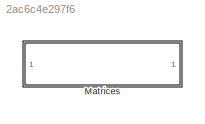
MODEL slx_2ac6c4e297f6
KIND model
CONFIG AbsTol = auto
CONFIG EnableMultiTasking = off
CONFIG FixedStep = auto
CONFIG MaxStep = auto
CONFIG MinStep = auto
CONFIG RelTol = 1e-3
CONFIG SampleTimeConstraint = Unconstrained
CONFIG SolverName = VariableStepAuto
CONFIG StartTime = 0.0
CONFIG StopTime = 10.0
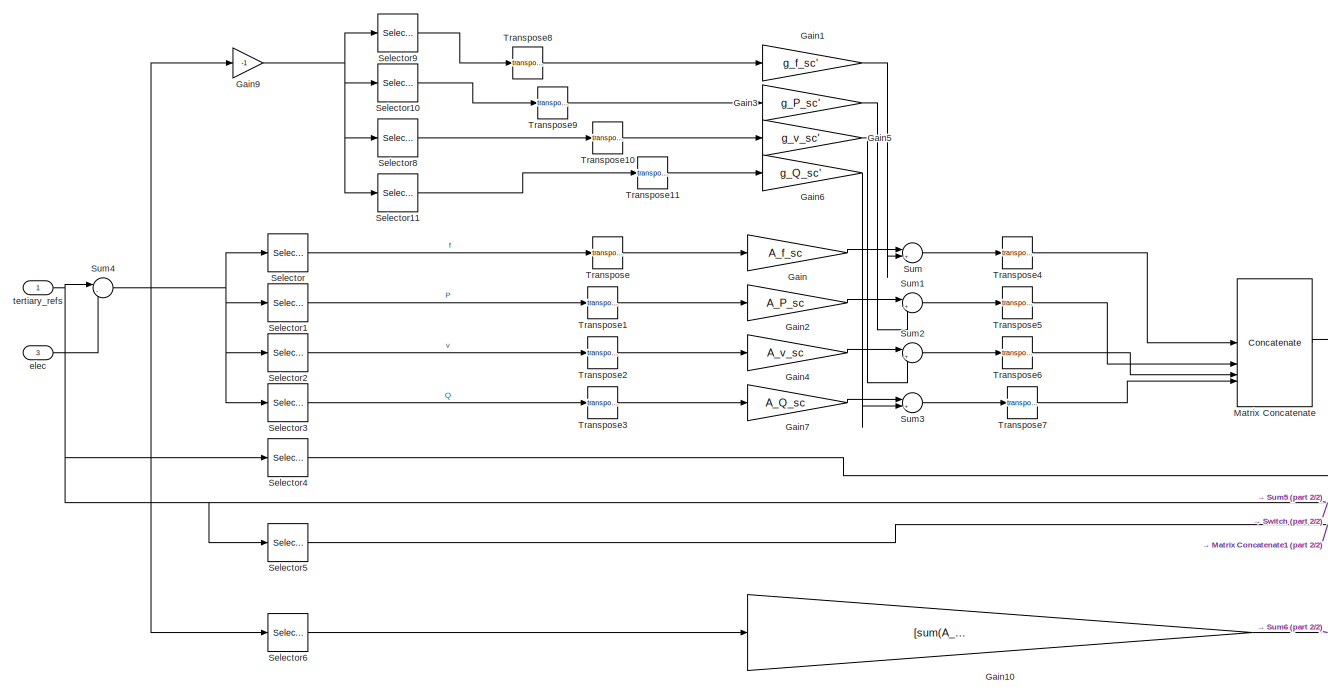
[diagram: Matrices - part 1/2, left side, full height]
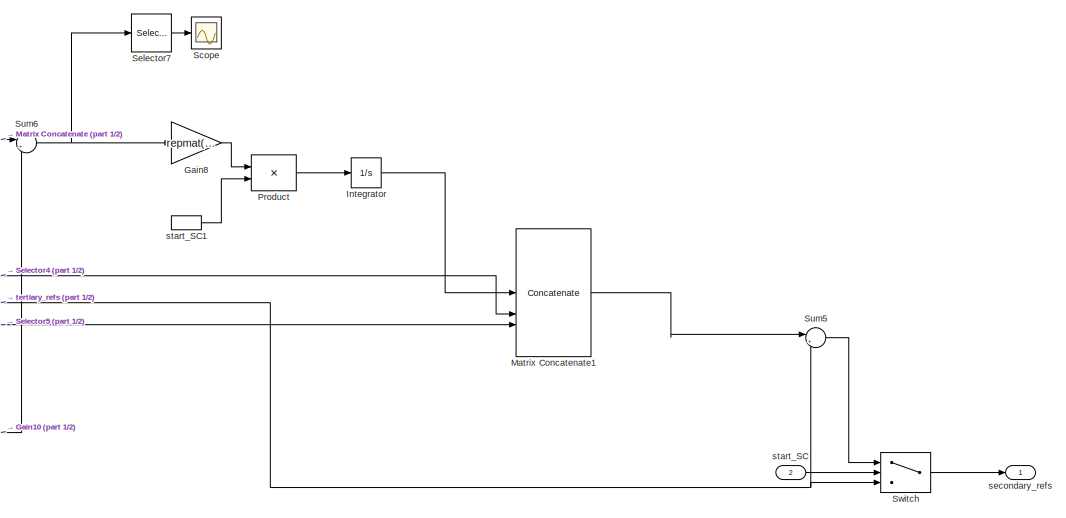
[diagram: Matrices - part 2/2, middle right region]
BLOCK [SubSystem] Matrices
  NameLocation = top
  VariantControl = Matrices
BLOCK [Gain] Matrices/Gain
  Gain = A_f_sc
  Multiplication = Matrix(K*u)
BLOCK [Gain] Matrices/Gain1
  Gain = g_f_sc'
BLOCK [Gain] Matrices/Gain10
  Gain = [sum(A_f_sc, 2)'; sum(A_P_sc, 2)'; sum(A_v_sc, 2)'; sum(A_Q_sc, 2)']
BLOCK [Gain] Matrices/Gain2
  Gain = A_P_sc
  Multiplication = Matrix(K*u)
BLOCK [Gain] Matrices/Gain3
  Gain = g_P_sc'
BLOCK [Gain] Matrices/Gain4
  Gain = A_v_sc
  Multiplication = Matrix(K*u)
BLOCK [Gain] Matrices/Gain5
  Gain = g_v_sc'
BLOCK [Gain] Matrices/Gain6
  Gain = g_Q_sc'
BLOCK [Gain] Matrices/Gain7
  Gain = A_Q_sc
  Multiplication = Matrix(K*u)
BLOCK [Gain] Matrices/Gain8
  Gain = repmat([1 0.01 1 0.01]', 1, length(buses_lf))
BLOCK [Gain] Matrices/Gain9
  Gain = -1
BLOCK [Integrator] Matrices/Integrator
BLOCK [Concatenate] Matrices/Matrix Concatenate
  Mode = Multidimensional array
  NumInputs = 4
BLOCK [Concatenate] Matrices/Matrix Concatenate1
  Mode = Multidimensional array
  NumInputs = 3
BLOCK [Product] Matrices/Product
BLOCK [Scope] Matrices/Scope
  ActiveDisplayYMaximum = 0.00015
  ActiveDisplayYMinimum = -0.00016
  DataLoggingVariableName = ScopeData1
  Floating = off
  GraphicalSettings = {"GraphicalSettings":{"LegacySettings":true,"Style":{"AxesScalingProperties":{"AlignXAxis":"Center","AlignYAxis":"Center","AutoScaleXAxisLimits":true,"AxesScaling":"Manual","AxesScalingNumUpdates":10,"ScaleAxesLimitsAtStop":true,"XAxisDataRange":100,"YAxisDataRange":80},"Style":{"AxesColor":"[0 0 0]","ChannelNames":[""],"ColorOrder":"[1 0.909803921568627 0.392156862745098;0.149019607843137 0.54901...<+675ch>
  LayoutDimensionsString = [1 1]
  MultipleDisplayCache = [{"MaxYLimMag":0.00016,"MaxYLimReal":0.00015,"MinYLimMag":0,"MinYLimReal":-0.00016,"PlotAsMagnitudePhase":false,"ShowGrid":true,"ShowLegend":true,"Title":"%<SignalLabel>","YLabel":""}]
  NumInputPorts = 1
  ShowLegend = on
  WasSavedAsWebScope = on
  WindowPosition = [760 196 560 420]
BLOCK [Selector] Matrices/Selector
  IndexOptions = Index vector (dialog),Select all
  Indices = 1,1
  InputPortWidth = 3
  NumberOfDimensions = 2
  OutputSizes = 1,1
BLOCK [Selector] Matrices/Selector1
  IndexOptions = Index vector (dialog),Select all
  Indices = 2,1
  InputPortWidth = 3
  NumberOfDimensions = 2
  OutputSizes = 1,1
BLOCK [Selector] Matrices/Selector10
  IndexOptions = Index vector (dialog),Select all
  Indices = 2,1
  InputPortWidth = 3
  NumberOfDimensions = 2
  OutputSizes = 1,1
BLOCK [Selector] Matrices/Selector11
  IndexOptions = Index vector (dialog),Select all
  Indices = 4,1
  InputPortWidth = 3
  NumberOfDimensions = 2
  OutputSizes = 1,1
BLOCK [Selector] Matrices/Selector2
  IndexOptions = Index vector (dialog),Select all
  Indices = 3,1
  InputPortWidth = 3
  NumberOfDimensions = 2
  OutputSizes = 1,1
BLOCK [Selector] Matrices/Selector3
  IndexOptions = Index vector (dialog),Select all
  Indices = 4,1
  InputPortWidth = 3
  NumberOfDimensions = 2
  OutputSizes = 1,1
BLOCK [Selector] Matrices/Selector4
  IndexOptions = Index vector (dialog),Select all
  Indices = 5,1
  InputPortWidth = 3
  NumberOfDimensions = 2
  OutputSizes = 1,1
BLOCK [Selector] Matrices/Selector5
  IndexOptions = Index vector (dialog),Select all
  Indices = 6,1
  InputPortWidth = 3
  NumberOfDimensions = 2
  OutputSizes = 1,1
BLOCK [Selector] Matrices/Selector6
  IndexOptions = Index vector (dialog),Select all
  Indices = 1:4,1
  InputPortWidth = 3
  NumberOfDimensions = 2
  OutputSizes = 1,1
BLOCK [Selector] Matrices/Selector7
  IndexOptions = Index vector (dialog),Select all
  Indices = 1,1
  InputPortWidth = 3
  NumberOfDimensions = 2
  OutputSizes = 1,1
BLOCK [Selector] Matrices/Selector8
  IndexOptions = Index vector (dialog),Select all
  Indices = 3,1
  InputPortWidth = 3
  NumberOfDimensions = 2
  OutputSizes = 1,1
BLOCK [Selector] Matrices/Selector9
  IndexOptions = Index vector (dialog),Select all
  Indices = 1,1
  InputPortWidth = 3
  NumberOfDimensions = 2
  OutputSizes = 1,1
BLOCK [Sum] Matrices/Sum
  Inputs = |++
BLOCK [Sum] Matrices/Sum1
  Inputs = |++
BLOCK [Sum] Matrices/Sum2
  Inputs = |++
BLOCK [Sum] Matrices/Sum3
  Inputs = |++
BLOCK [Sum] Matrices/Sum4
  Inputs = |-+
BLOCK [Sum] Matrices/Sum5
  Inputs = |++
BLOCK [Sum] Matrices/Sum6
  Inputs = |+-
BLOCK [Switch] Matrices/Switch
  Criteria = u2 > Threshold
  InputSameDT = off
  SaturateOnIntegerOverflow = off
BLOCK [Math] Matrices/Transpose
  Operator = transpose
BLOCK [Math] Matrices/Transpose1
  Operator = transpose
BLOCK [Math] Matrices/Transpose10
  Operator = transpose
BLOCK [Math] Matrices/Transpose11
  Operator = transpose
BLOCK [Math] Matrices/Transpose2
  Operator = transpose
BLOCK [Math] Matrices/Transpose3
  Operator = transpose
BLOCK [Math] Matrices/Transpose4
  Operator = transpose
BLOCK [Math] Matrices/Transpose5
  Operator = transpose
BLOCK [Math] Matrices/Transpose6
  Operator = transpose
BLOCK [Math] Matrices/Transpose7
  Operator = transpose
BLOCK [Math] Matrices/Transpose8
  Operator = transpose
BLOCK [Math] Matrices/Transpose9
  Operator = transpose
BLOCK [Inport] Matrices/elec
  Port = 3
BLOCK [Outport] Matrices/secondary_refs
BLOCK [Inport] Matrices/start_SC
  Port = 2
BLOCK [InportShadow] Matrices/start_SC1
  Port = 2
BLOCK [Inport] Matrices/tertiary_refs
LINE Matrices/Gain10:1 -> Matrices/Sum6:2
LINE Matrices/Gain1:1 -> Matrices/Sum:2
LINE Matrices/Gain2:1 -> Matrices/Sum1:1
LINE Matrices/Gain3:1 -> Matrices/Sum1:2
LINE Matrices/Gain4:1 -> Matrices/Sum2:1
LINE Matrices/Gain5:1 -> Matrices/Sum2:2
LINE Matrices/Gain6:1 -> Matrices/Sum3:2
LINE Matrices/Gain7:1 -> Matrices/Sum3:1
LINE Matrices/Gain8:1 -> Matrices/Product:1
NET Matrices/Gain9:1 -> Matrices/Selector10:1, Matrices/Selector11:1, Matrices/Selector8:1, Matrices/Selector9:1
LINE Matrices/Gain:1 -> Matrices/Sum:1
LINE Matrices/Integrator:1 -> Matrices/Matrix Concatenate1:1
LINE Matrices/Matrix Concatenate1:1 -> Matrices/Sum5:1
LINE Matrices/Matrix Concatenate:1 -> Matrices/Sum6:1
LINE Matrices/Product:1 -> Matrices/Integrator:1
LINE Matrices/Selector10:1 -> Matrices/Transpose9:1
LINE Matrices/Selector11:1 -> Matrices/Transpose11:1
LINE Matrices/Selector1:1 -> Matrices/Transpose1:1
LINE Matrices/Selector2:1 -> Matrices/Transpose2:1
LINE Matrices/Selector3:1 -> Matrices/Transpose3:1
LINE Matrices/Selector4:1 -> Matrices/Matrix Concatenate1:2
LINE Matrices/Selector5:1 -> Matrices/Matrix Concatenate1:3
LINE Matrices/Selector6:1 -> Matrices/Gain10:1
LINE Matrices/Selector7:1 -> Matrices/Scope:1
LINE Matrices/Selector8:1 -> Matrices/Transpose10:1
LINE Matrices/Selector9:1 -> Matrices/Transpose8:1
LINE Matrices/Selector:1 -> Matrices/Transpose:1
LINE Matrices/Sum1:1 -> Matrices/Transpose5:1
LINE Matrices/Sum2:1 -> Matrices/Transpose6:1
LINE Matrices/Sum3:1 -> Matrices/Transpose7:1
NET Matrices/Sum4:1 -> Matrices/Gain9:1, Matrices/Selector1:1, Matrices/Selector2:1, Matrices/Selector3:1, Matrices/Selector6:1, Matrices/Selector:1
LINE Matrices/Sum5:1 -> Matrices/Switch:1
NET Matrices/Sum6:1 -> Matrices/Gain8:1, Matrices/Selector7:1
LINE Matrices/Sum:1 -> Matrices/Transpose4:1
LINE Matrices/Switch:1 -> Matrices/secondary_refs:1
LINE Matrices/Transpose10:1 -> Matrices/Gain5:1
LINE Matrices/Transpose11:1 -> Matrices/Gain6:1
LINE Matrices/Transpose1:1 -> Matrices/Gain2:1
LINE Matrices/Transpose2:1 -> Matrices/Gain4:1
LINE Matrices/Transpose3:1 -> Matrices/Gain7:1
LINE Matrices/Transpose4:1 -> Matrices/Matrix Concatenate:1
LINE Matrices/Transpose5:1 -> Matrices/Matrix Concatenate:2
LINE Matrices/Transpose6:1 -> Matrices/Matrix Concatenate:3
LINE Matrices/Transpose7:1 -> Matrices/Matrix Concatenate:4
LINE Matrices/Transpose8:1 -> Matrices/Gain1:1
LINE Matrices/Transpose9:1 -> Matrices/Gain3:1
LINE Matrices/Transpose:1 -> Matrices/Gain:1
LINE Matrices/elec:1 -> Matrices/Sum4:2
LINE Matrices/start_SC1:1 -> Matrices/Product:2
LINE Matrices/start_SC:1 -> Matrices/Switch:2
NET Matrices/tertiary_refs:1 -> Matrices/Selector4:1, Matrices/Selector5:1, Matrices/Sum4:1, Matrices/Sum5:2, Matrices/Switch:3
note: NET lines group one-source signal fan-out (src -> all destinations, sorted); 1:1 wires keep LINE
